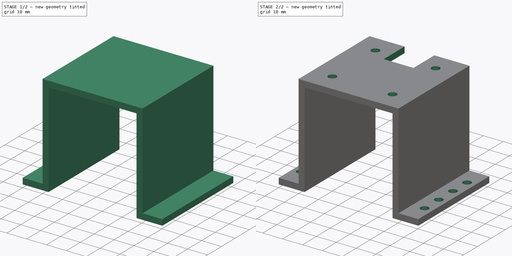
[diagram: build sequence overview — one tinted view per stage of 2, left to right]
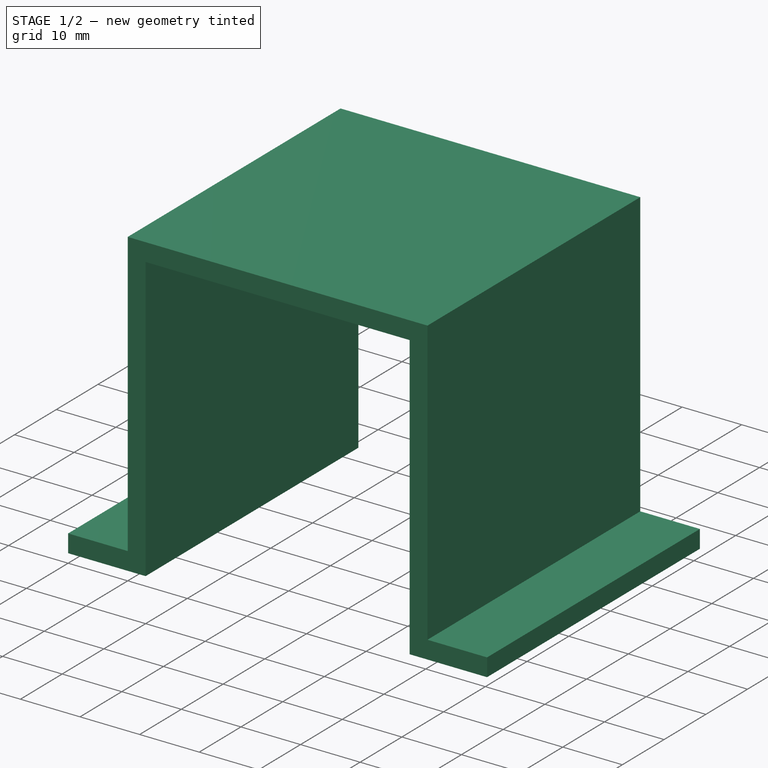
[diagram: stage 1 of 2 — iso view after this stage's code; geometry added in this stage tinted green]
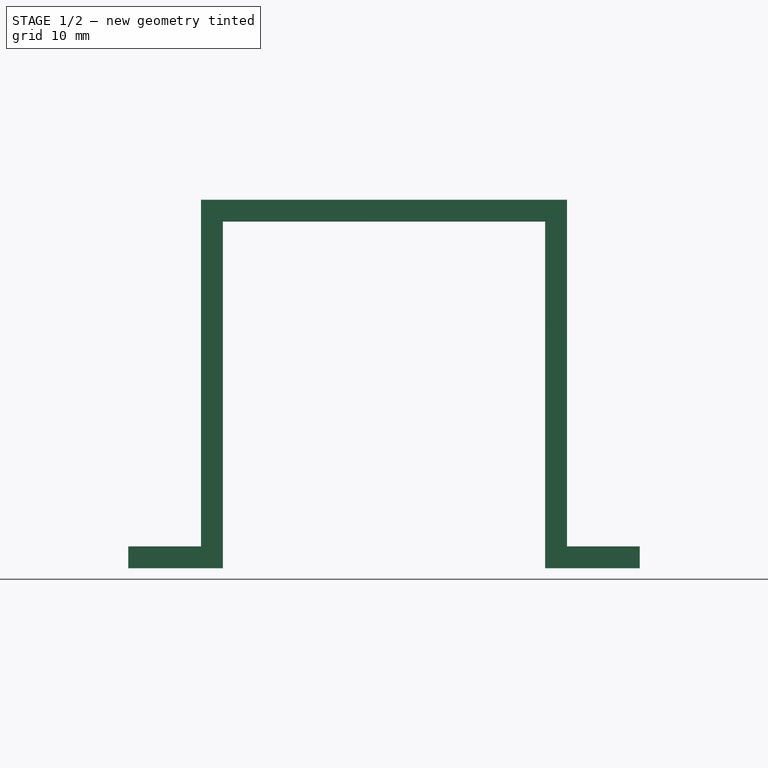
[diagram: stage 1 of 2 — front view after this stage's code; geometry added in this stage tinted green]
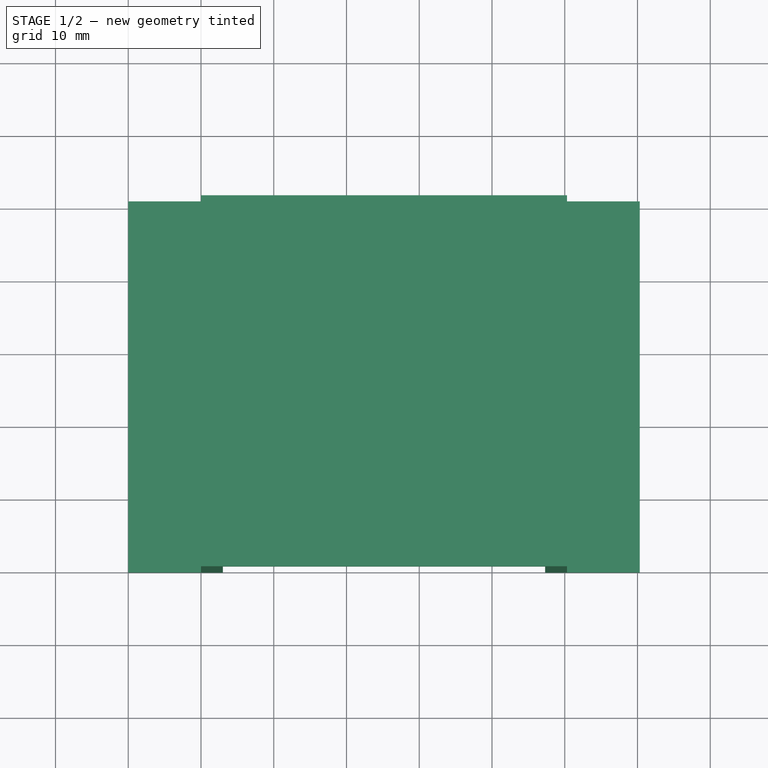
[diagram: stage 1 of 2 — top view after this stage's code; geometry added in this stage tinted green]
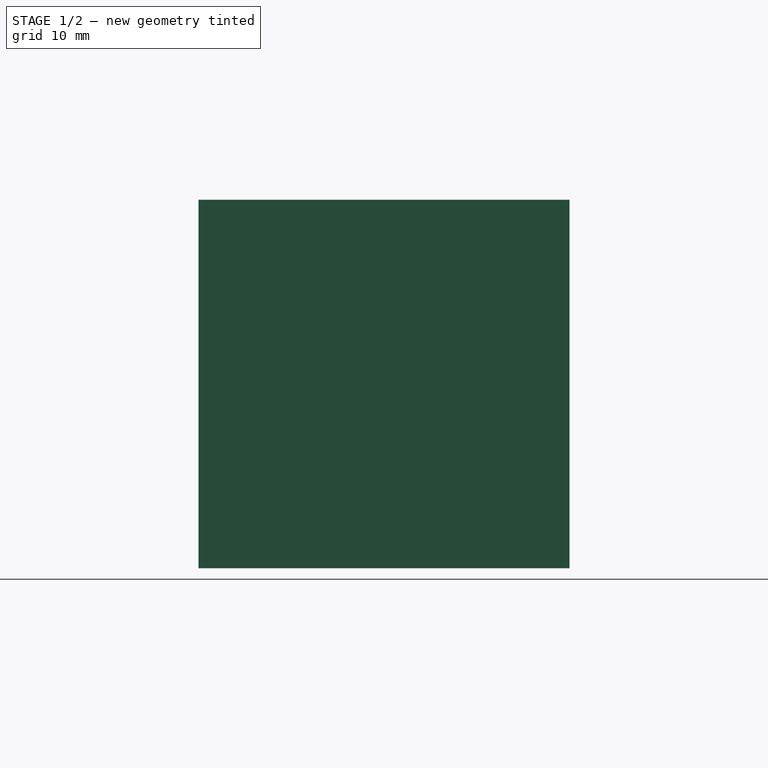
[diagram: stage 1 of 2 — right view after this stage's code; geometry added in this stage tinted green]
FCSTD DOCUMENT  (FreeCAD 0.16R6707 (Git))
Label: support_support_moteur
License: All rights reserved
LicenseURL: http://en.wikipedia.org/wiki/All_rights_reserved
objects: Sketcher::SketchObject×3, PartDesign::Pocket×2, PartDesign::Pad×1
note: 9 computed .brp shape members not serialized (recipe doc carries the construction recipe); baked Part::Feature solids carry a one-line shape summary decoded from their .brp

FEATURE [Sketcher::SketchObject] Sketch
  sketch-geometry (4):
    g0: LineSegment StartX=0 StartY=0 StartZ=0 EndX=70.3 EndY=0 EndZ=0
    g1: LineSegment StartX=70.3 StartY=0 StartZ=0 EndX=70.3 EndY=51 EndZ=0
    g2: LineSegment StartX=70.3 StartY=51 StartZ=0 EndX=0 EndY=51 EndZ=0
    g3: LineSegment StartX=0 StartY=51 StartZ=0 EndX=0 EndY=0 EndZ=0
  constraints (11):
    c: Coincident(g0,g1)
    c: Coincident(g1,g2)
    c: Coincident(g2,g3)
    c: Coincident(g3,g0)
    c: Horizontal(g0)
    c: Horizontal(g2)
    c: Vertical(g1)
    c: Vertical(g3)
    c: Coincident(g0,g-1)
    c: Distance(g2) = 70.3
    c: Distance(g3) = 51
FEATURE [PartDesign::Pad] Pad
  Length = 50.65
  Length2 = 100
  Sketch = -> Sketch
  Type = 0
FEATURE [Sketcher::SketchObject] Sketch001
  Placement = pos=(0,0,0) rot=(1,0,0;1.5708rad)
  Support = -> Pad [Face1]
  sketch-geometry (15):
    g0: GeomPoint [constr] X=13 Y=0 Z=0
    g1: LineSegment StartX=13 StartY=0 StartZ=0 EndX=57.3 EndY=0 EndZ=0
    g2: LineSegment StartX=57.3 StartY=0 StartZ=0 EndX=57.3 EndY=47.65 EndZ=0
    g3: LineSegment StartX=57.3 StartY=47.65 StartZ=0 EndX=13 EndY=47.65 EndZ=0
    g4: LineSegment StartX=13 StartY=47.65 StartZ=0 EndX=13 EndY=0 EndZ=0
    g5: GeomPoint [constr] X=0 Y=3 Z=0
    g6: GeomPoint [constr] X=70.3 Y=3 Z=0
    g7: LineSegment StartX=0 StartY=3 StartZ=0 EndX=10 EndY=3 EndZ=0
    g8: LineSegment StartX=10 StartY=3 StartZ=0 EndX=10 EndY=50.65 EndZ=0
    g9: LineSegment StartX=10 StartY=50.65 StartZ=0 EndX=0 EndY=50.65 EndZ=0
    g10: LineSegment StartX=0 StartY=50.65 StartZ=0 EndX=0 EndY=3 EndZ=0
    g11: LineSegment StartX=70.3 StartY=3 StartZ=0 EndX=60.3 EndY=3 EndZ=0
    g12: LineSegment StartX=60.3 StartY=3 StartZ=0 EndX=60.3 EndY=50.65 EndZ=0
    g13: LineSegment StartX=60.3 StartY=50.65 StartZ=0 EndX=70.3 EndY=50.65 EndZ=0
    g14: LineSegment StartX=70.3 StartY=50.65 StartZ=0 EndX=70.3 EndY=3 EndZ=0
  constraints (39):
    c: PointOnObject(g0,g-1)
    c: DistanceX(g0) = 13
    c: Coincident(g1,g2)
    c: Coincident(g2,g3)
    c: Coincident(g3,g4)
    c: Coincident(g4,g1)
    c: Horizontal(g1)
    c: Horizontal(g3)
    c: Vertical(g2)
    c: Vertical(g4)
    c: Coincident(g1,g0)
    c: Distance(g2) = 47.65
    c: Distance(g3) = 44.3
    c: PointOnObject(g5,g-2)
    c: DistanceY(g6) = 3
    c: DistanceX(g1,g6) = 13
    c: DistanceY(g5) = 3
    c: Coincident(g7,g8)
    c: Coincident(g8,g9)
    c: Coincident(g9,g10)
    c: Coincident(g10,g7)
    c: Horizontal(g7)
    c: Horizontal(g9)
    c: Vertical(g8)
    c: Vertical(g10)
    c: Coincident(g7,g5)
    c: Distance(g9) = 10
    c: Coincident(g11,g12)
    c: Coincident(g12,g13)
    c: Coincident(g13,g14)
    c: Coincident(g14,g11)
    c: Horizontal(g11)
    c: Horizontal(g13)
    c: Vertical(g12)
    c: Vertical(g14)
    c: Coincident(g11,g6)
    c: Distance(g13) = 10
    c: Distance(g8) = 47.65
    c: Distance(g14) = 47.65
FEATURE [PartDesign::Pocket] Pocket
  Length = 5
  Sketch = -> Sketch001
  Type = 1
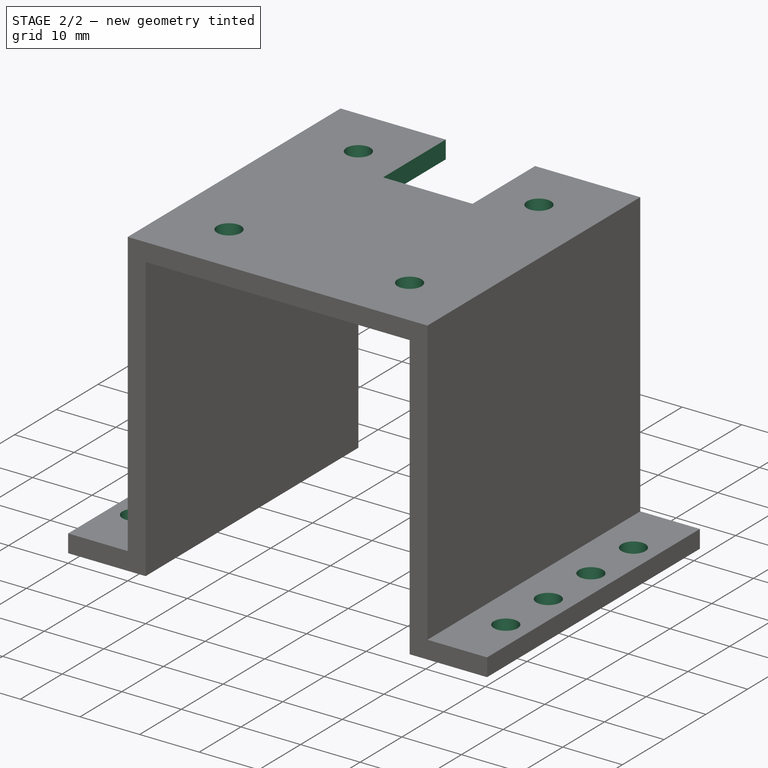
[diagram: stage 2 of 2 — iso view after this stage's code; geometry added in this stage tinted green]
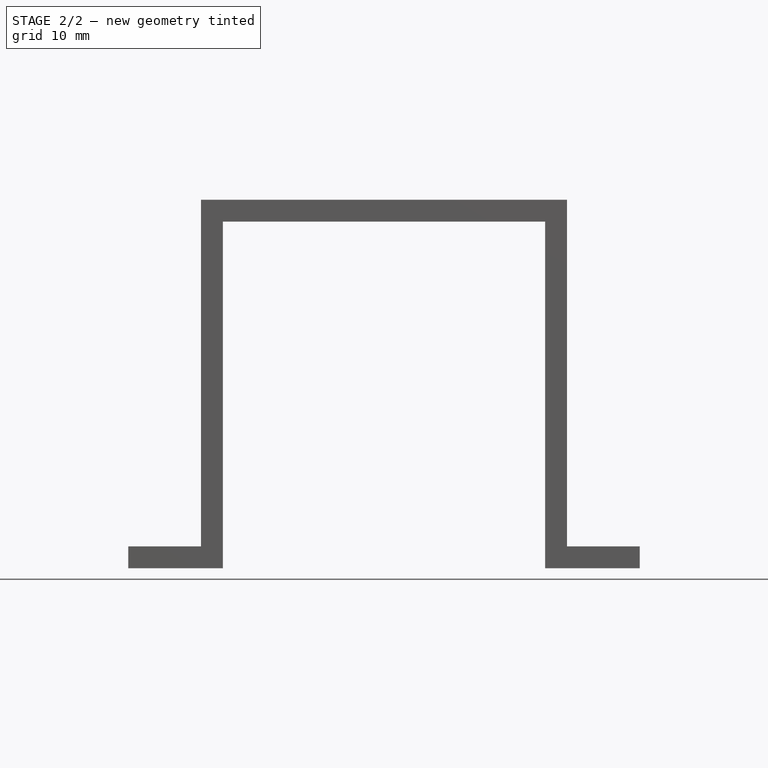
[diagram: stage 2 of 2 — front view after this stage's code; geometry added in this stage tinted green]
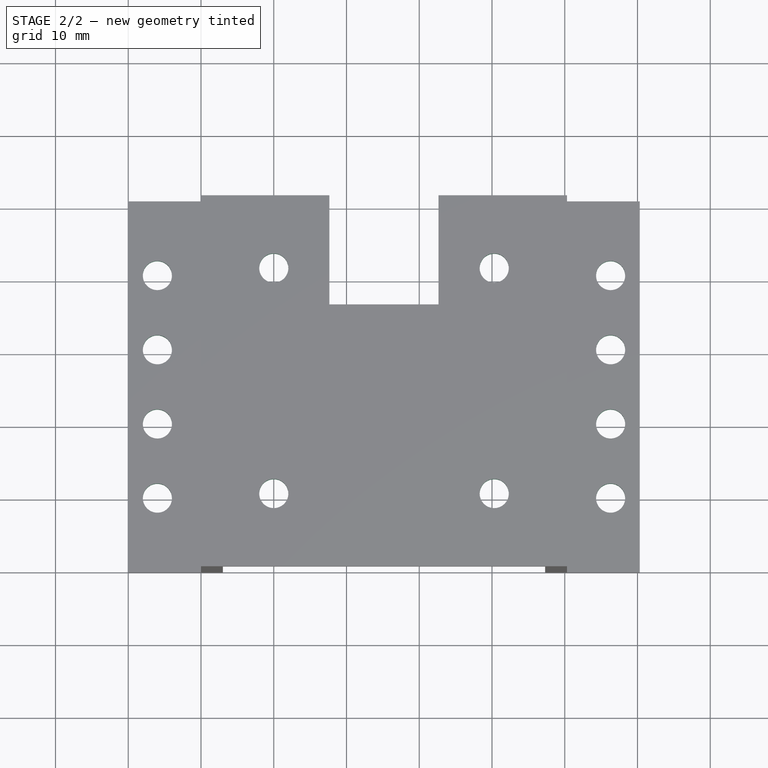
[diagram: stage 2 of 2 — top view after this stage's code; geometry added in this stage tinted green]
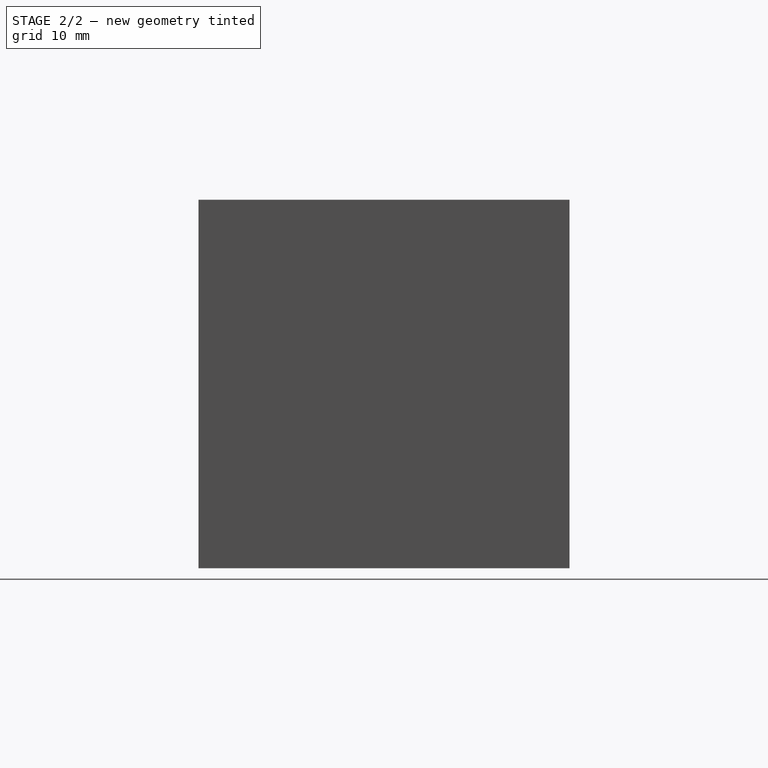
[diagram: stage 2 of 2 — right view after this stage's code; geometry added in this stage tinted green]
FEATURE [Sketcher::SketchObject] Sketch002
  Placement = pos=(0,0,50.65) rot=(0,0,1;0rad)
  Support = -> Pocket [Face10]
  sketch-geometry (30):
    g0: GeomPoint [constr] X=20 Y=10 Z=0
    g1: GeomPoint [constr] X=50.3 Y=10 Z=0
    g2: GeomPoint [constr] X=20 Y=41 Z=0
    g3: GeomPoint [constr] X=50.3 Y=41 Z=0
    g4: GeomPoint [constr] X=4 Y=40.8 Z=0
    g5: GeomPoint [constr] X=4 Y=30.6 Z=0
    g6: GeomPoint [constr] X=4 Y=20.4 Z=0
    g7: GeomPoint [constr] X=66.3 Y=40.8 Z=0
    g8: GeomPoint [constr] X=66.3 Y=30.6 Z=0
    g9: GeomPoint [constr] X=66.3 Y=20.4 Z=0
    g10: GeomPoint [constr] X=66.3 Y=10.2 Z=0
    g11: GeomPoint [constr] X=4 Y=10.2 Z=0
    g12: Circle CenterX=20 CenterY=41 CenterZ=0 NormalX=0 NormalY=0 NormalZ=1 Radius=2
    g13: Circle CenterX=50.3 CenterY=41 CenterZ=0 NormalX=0 NormalY=0 NormalZ=1 Radius=2
    g14: Circle CenterX=20 CenterY=10 CenterZ=0 NormalX=0 NormalY=0 NormalZ=1 Radius=2
    g15: Circle CenterX=50.3 CenterY=10 CenterZ=0 NormalX=0 NormalY=0 NormalZ=1 Radius=2
    g16: Circle CenterX=4 CenterY=40.8 CenterZ=0 NormalX=0 NormalY=0 NormalZ=1 Radius=2
    g17: Circle CenterX=4 CenterY=30.6 CenterZ=0 NormalX=0 NormalY=0 NormalZ=1 Radius=2
    g18: Circle CenterX=4 CenterY=20.4 CenterZ=0 NormalX=0 NormalY=0 NormalZ=1 Radius=2
    g19: Circle CenterX=4 CenterY=10.2 CenterZ=0 NormalX=0 NormalY=0 NormalZ=1 Radius=2
    g20: Circle CenterX=66.3 CenterY=40.8 CenterZ=0 NormalX=0 NormalY=0 NormalZ=1 Radius=2
    g21: Circle CenterX=66.3 CenterY=30.6 CenterZ=0 NormalX=0 NormalY=0 NormalZ=1 Radius=2
    g22: Circle CenterX=66.3 CenterY=20.4 CenterZ=0 NormalX=0 NormalY=0 NormalZ=1 Radius=2
    g23: Circle CenterX=66.3 CenterY=10.2 CenterZ=0 NormalX=0 NormalY=0 NormalZ=1 Radius=2
    g24: GeomPoint [constr] X=35.15 Y=51 Z=0
    g25: GeomPoint [constr] X=42.65 Y=51 Z=0
    g26: LineSegment StartX=42.65 StartY=51 StartZ=0 EndX=27.65 EndY=51 EndZ=0
    g27: LineSegment StartX=27.65 StartY=51 StartZ=0 EndX=27.65 EndY=36 EndZ=0
    g28: LineSegment StartX=27.65 StartY=36 StartZ=0 EndX=42.65 EndY=36 EndZ=0
    g29: LineSegment StartX=42.65 StartY=36 StartZ=0 EndX=42.65 EndY=51 EndZ=0
  constraints (63):
    c: DistanceY(g0) = 10
    c: DistanceY(g0,g2) = 31
    c: DistanceX(g2,g0) = 0
    c: DistanceY(g1) = 10
    c: DistanceY(g1,g3) = 31
    c: DistanceX(g3,g1) = 0
    c: DistanceX(g-1,g0) = 20
    c: DistanceX(g0,g1) = 30.3
    c: Coincident(g12,g2)
    c: Coincident(g13,g3)
    c: Coincident(g14,g0)
    c: Coincident(g15,g1)
    c: Radius(g12) = 2
    c: Radius(g13) = 2
    c: Radius(g14) = 2
    c: Radius(g15) = 2
    c: DistanceY(g11) = 10.2
    c: DistanceY(g11,g6) = 10.2
    c: DistanceY(g6,g5) = 10.2
    c: DistanceY(g5,g4) = 10.2
    c: DistanceY(g10) = 10.2
    c: DistanceY(g10,g9) = 10.2
    c: DistanceY(g9,g8) = 10.2
    c: DistanceY(g8,g7) = 10.2
    c: DistanceX(g4,g5) = 0
    c: DistanceX(g6,g5) = 0
    c: DistanceX(g11,g6) = 0
    c: DistanceX(g8,g7) = 0
    c: DistanceX(g8,g9) = 0
    c: DistanceX(g9,g10) = 0
    c: DistanceX(g-1,g11) = 4
    c: DistanceX(g10) = 66.3
    c: Coincident(g16,g4)
    c: Coincident(g17,g5)
    c: Coincident(g18,g6)
    c: Coincident(g19,g11)
    c: Coincident(g20,g7)
    c: Coincident(g21,g8)
    c: Coincident(g22,g9)
    c: Coincident(g23,g10)
    c: Radius(g16) = 2
    c: Radius(g17) = 2
    c: Radius(g18) = 2
    c: Radius(g19) = 2
    c: Radius(g20) = 2
    c: Radius(g21) = 2
    c: Radius(g22) = 2
    c: Radius(g23) = 2
    c: DistanceY(g24) = 51
    c: DistanceX(g24) = 35.15
    c: DistanceX(g24,g25) = 7.5
    c: DistanceY(g24,g25) = 0
    c: Coincident(g26,g27)
    c: Coincident(g27,g28)
    c: Coincident(g28,g29)
    c: Coincident(g29,g26)
    c: Horizontal(g26)
    c: Horizontal(g28)
    c: Vertical(g27)
    c: Vertical(g29)
    c: Coincident(g26,g25)
    c: Distance(g27) = 15
    c: Distance(g28) = 15
FEATURE [PartDesign::Pocket] Pocket001
  Length = 5
  Sketch = -> Sketch002
  Type = 1
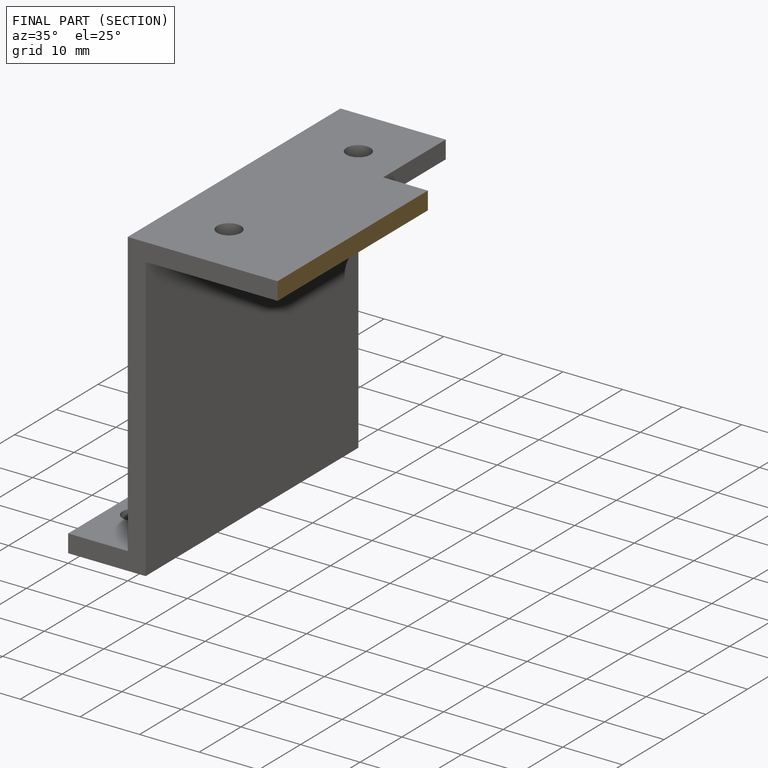
[diagram: finished part — half-section view (interior)]
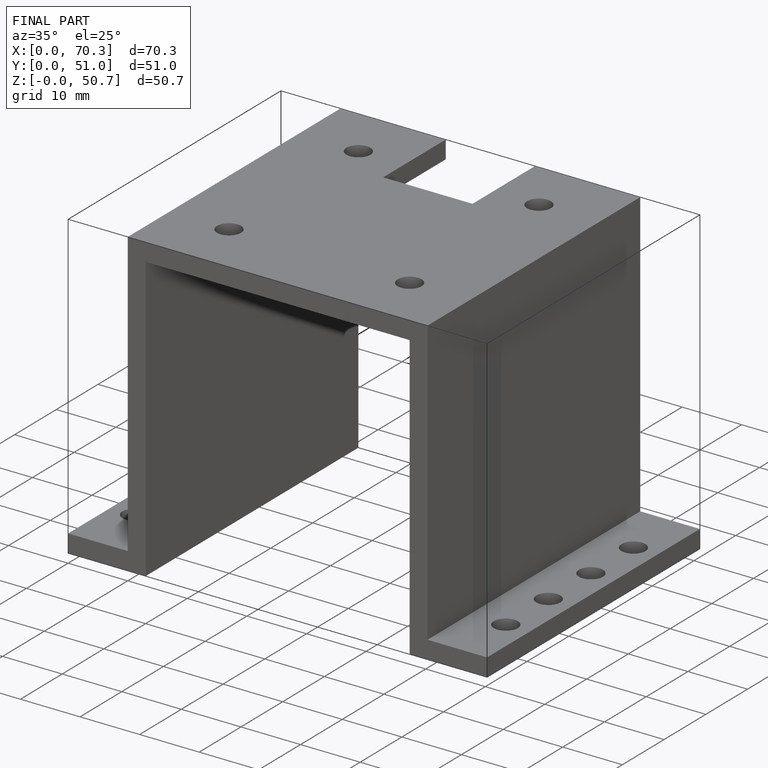
[diagram: finished part — iso view with bounding-box wireframe]
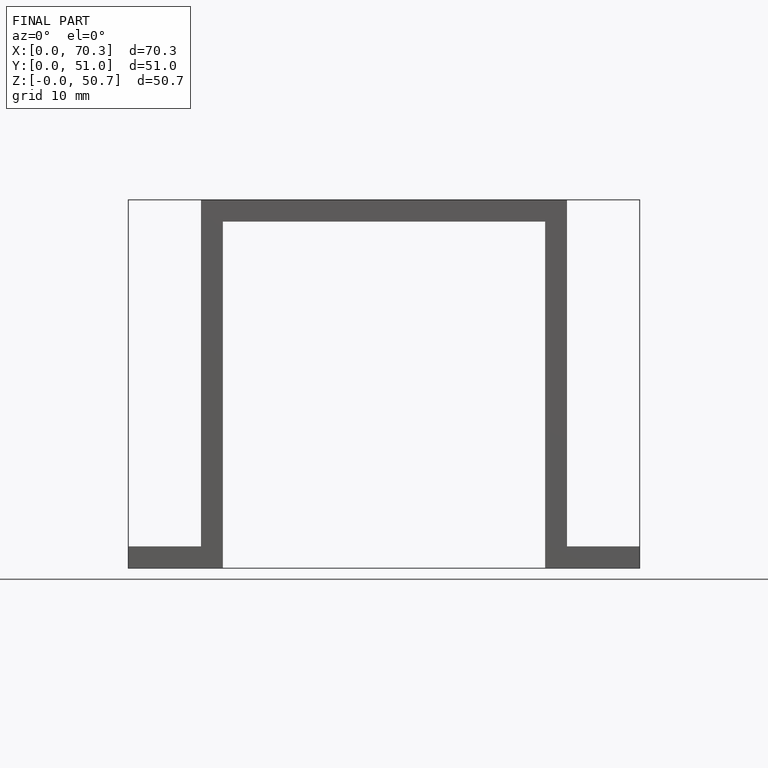
[diagram: finished part — front view with bounding-box wireframe]
